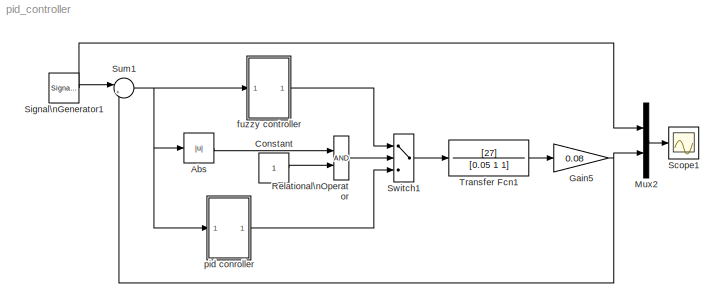
MODEL pid_controller
KIND model
BLOCK [Abs] Abs
BLOCK [Constant] Constant
BLOCK [Gain] Gain5
  Gain = 0.08
BLOCK [Mux] Mux2
  DisplayOption = bar
  Inputs = 2
  Ports = [2, 1]
BLOCK [RelationalOperator] Relational\nOperator
BLOCK [Scope] Scope1
  DataFormat = StructureWithTime
  Floating = off
  NumInputPorts = 1
  Ports = [1]
  SampleTime = 0
  SaveName = ScopeData2
  TimeRange = 1.5
  YMax = 0.805
  YMin = 0.7475
BLOCK [SignalGenerator] Signal\nGenerator1
  Ports = [0, 1]
  Units = rad/sec
BLOCK [Sum] Sum1
  IconShape = round
  Inputs = |+-
  Ports = [2, 1]
BLOCK [Switch] Switch1
  InputSameDT = off
  SaturateOnIntegerOverflow = off
BLOCK [TransferFcn] Transfer Fcn1
  Denominator = [0.05 1 1]
  Numerator = [27]
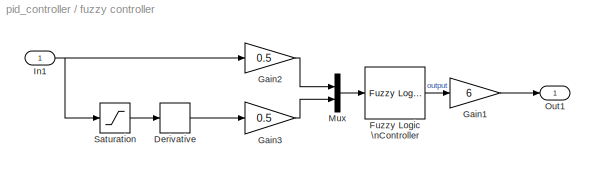
BLOCK [SubSystem] fuzzy controller
  MaskHideContents = off
  MinAlgLoopOccurrences = off
  Ports = [1, 1]
  RTWSystemCode = Auto
  TreatAsAtomicUnit = off
BLOCK [Derivative] fuzzy controller/Derivative
BLOCK [Reference] fuzzy controller/Fuzzy Logic \nController  REF=fuzblock/Fuzzy Logic \nController  (lib defined in mdl_858b3b3e7478)
  Ports = [1, 1]
  ShowPortLabels = on
  SourceBlock = fuzblock/Fuzzy Logic \nController
  SourceType = FIS
  fis = fuzzy
BLOCK [Gain] fuzzy controller/Gain1
  Gain = 6
BLOCK [Gain] fuzzy controller/Gain2
  Gain = 0.5
BLOCK [Gain] fuzzy controller/Gain3
  Gain = 0.5
BLOCK [Inport] fuzzy controller/In1
  IconDisplay = Port number
BLOCK [Mux] fuzzy controller/Mux
  DisplayOption = bar
  Inputs = 2
  Ports = [2, 1]
BLOCK [Outport] fuzzy controller/Out1
  BusOutputAsStruct = off
  IconDisplay = Port number
BLOCK [Saturate] fuzzy controller/Saturation
  LowerLimit = -10
  UpperLimit = 10
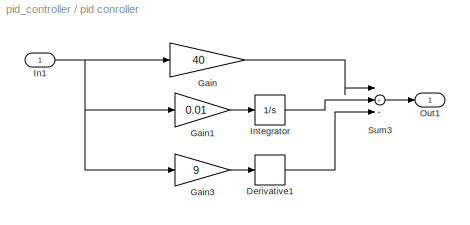
BLOCK [SubSystem] pid conroller
  MaskHideContents = off
  MinAlgLoopOccurrences = off
  Ports = [1, 1]
  RTWSystemCode = Auto
  TreatAsAtomicUnit = off
BLOCK [Derivative] pid conroller/Derivative1
BLOCK [Gain] pid conroller/Gain
  Gain = 40
BLOCK [Gain] pid conroller/Gain1
  Gain = 0.01
BLOCK [Gain] pid conroller/Gain3
  Gain = 9
BLOCK [Inport] pid conroller/In1
  IconDisplay = Port number
BLOCK [Integrator] pid conroller/Integrator
  IgnoreLimit = off
  Ports = [1, 1]
BLOCK [Outport] pid conroller/Out1
  BusOutputAsStruct = off
  IconDisplay = Port number
BLOCK [Sum] pid conroller/Sum3
  Inputs = |+++
  Ports = [3, 1]
LINE Abs:1 -> Relational\nOperator:1
LINE Constant:1 -> Relational\nOperator:2
NET Gain5:1 -> Mux2:2, Sum1:2
LINE Mux2:1 -> Scope1:1
LINE Relational\nOperator:1 -> Switch1:2
NET Signal\nGenerator1:1 -> Mux2:1, Sum1:1
NET Sum1:1 -> Abs:1, fuzzy controller:1, pid conroller:1
LINE Switch1:1 -> Transfer Fcn1:1
LINE Transfer Fcn1:1 -> Gain5:1
LINE fuzzy controller/Derivative:1 -> fuzzy controller/Gain3:1
LINE fuzzy controller/Fuzzy Logic \nController:1 -> fuzzy controller/Gain1:1
LINE fuzzy controller/Gain1:1 -> fuzzy controller/Out1:1
LINE fuzzy controller/Gain2:1 -> fuzzy controller/Mux:1
LINE fuzzy controller/Gain3:1 -> fuzzy controller/Mux:2
NET fuzzy controller/In1:1 -> fuzzy controller/Gain2:1, fuzzy controller/Saturation:1
LINE fuzzy controller/Mux:1 -> fuzzy controller/Fuzzy Logic \nController:1
LINE fuzzy controller/Saturation:1 -> fuzzy controller/Derivative:1
LINE fuzzy controller:1 -> Switch1:1
LINE pid conroller/Derivative1:1 -> pid conroller/Sum3:3
LINE pid conroller/Gain1:1 -> pid conroller/Integrator:1
LINE pid conroller/Gain3:1 -> pid conroller/Derivative1:1
LINE pid conroller/Gain:1 -> pid conroller/Sum3:1
NET pid conroller/In1:1 -> pid conroller/Gain1:1, pid conroller/Gain3:1, pid conroller/Gain:1
LINE pid conroller/Integrator:1 -> pid conroller/Sum3:2
LINE pid conroller/Sum3:1 -> pid conroller/Out1:1
LINE pid conroller:1 -> Switch1:3
note: NET lines group one-source signal fan-out (src -> all destinations, sorted); 1:1 wires keep LINE
